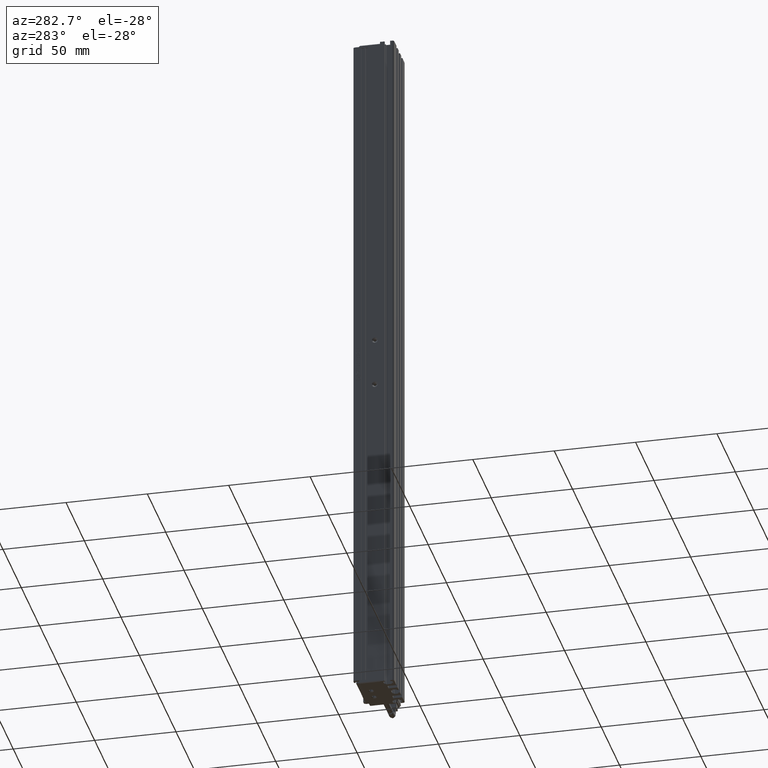
[diagram: clean part render]
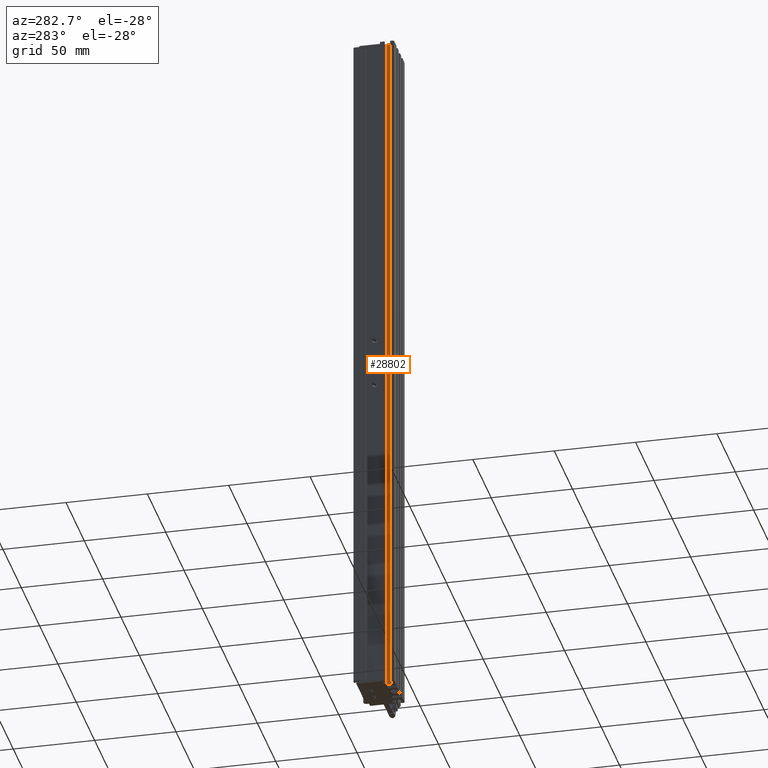
[diagram: same view with one face highlighted and labeled with its STEP entity id]
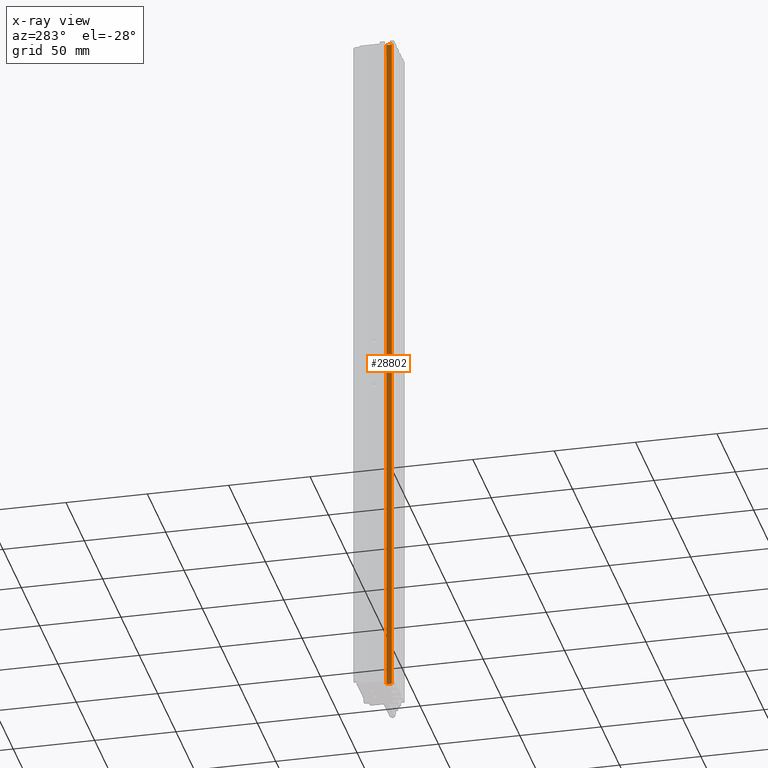
[diagram: x-ray of the same camera — body ghosted, the highlighted face saturated]
A machine part, auxiliary view. The second image highlights one B-rep face of the part: STEP entity #28802.
The next image is the same camera in x-ray: the body ghosted, the highlighted face saturated — about 0% of this face is hidden behind the body in this view.
In plain terms, the highlighted planar face has unit normal (1, 0, -0).
Its self-contained STEP definition (entity closure, byte-faithful):
#1677 = LINE ( 'NONE', #33534, #34597 ) ;
#2852 = EDGE_CURVE ( 'NONE', #55078, #64692, #1677, .T. ) ;
#6443 = FACE_OUTER_BOUND ( 'NONE', #72473, .T. ) ;
#7421 = DIRECTION ( 'NONE',  ( -0.0000000000000000000, -1.000000000000000000, 0.0000000000000000000 ) ) ;
#12691 = CARTESIAN_POINT ( 'NONE',  ( 30.72537974683543300, 12.99594479660387100, 102.0000000000000000 ) ) ;
#13891 = ORIENTED_EDGE ( 'NONE', *, *, #59784, .F. ) ;
#15445 = DIRECTION ( 'NONE',  ( -0.0000000000000000000, 0.0000000000000000000, -1.000000000000000000 ) ) ;
#16809 = LINE ( 'NONE', #48327, #63811 ) ;
#20302 = ORIENTED_EDGE ( 'NONE', *, *, #60264, .T. ) ;
#21232 = VECTOR ( 'NONE', #7421, 1000.000000000000000 ) ;
#25585 = DIRECTION ( 'NONE',  ( 1.000000000000000000, 0.0000000000000000000, -0.0000000000000000000 ) ) ;
#26155 = VERTEX_POINT ( 'NONE', #55039 ) ;
#28179 = ORIENTED_EDGE ( 'NONE', *, *, #46414, .F. ) ;
#28802 = ADVANCED_FACE ( 'NONE', ( #6443 ), #74004, .F. ) ;
#29261 = VERTEX_POINT ( 'NONE', #54367 ) ;
#33534 = CARTESIAN_POINT ( 'NONE',  ( 30.72537974683543300, 12.99594479660387100, 102.0000000000000000 ) ) ;
#33991 = VECTOR ( 'NONE', #34418, 1000.000000000000000 ) ;
#34418 = DIRECTION ( 'NONE',  ( -0.0000000000000000000, -1.000000000000000000, 0.0000000000000000000 ) ) ;
#34597 = VECTOR ( 'NONE', #15445, 1000.000000000000000 ) ;
#37602 = LINE ( 'NONE', #50413, #21232 ) ;
#46414 = EDGE_CURVE ( 'NONE', #29261, #55078, #37602, .T. ) ;
#47112 = ORIENTED_EDGE ( 'NONE', *, *, #2852, .F. ) ;
#48327 = CARTESIAN_POINT ( 'NONE',  ( 30.72537974683543300, 16.49594479660387200, 102.0000000000000000 ) ) ;
#50222 = LINE ( 'NONE', #60333, #33991 ) ;
#50413 = CARTESIAN_POINT ( 'NONE',  ( 30.72537974683543300, 7.083797468354437600, 102.0000000000000000 ) ) ;
#54367 = CARTESIAN_POINT ( 'NONE',  ( 30.72537974683543300, 16.49594479660387200, 102.0000000000000000 ) ) ;
#54471 = DIRECTION ( 'NONE',  ( 0.0000000000000000000, -0.0000000000000000000, 1.000000000000000000 ) ) ;
#55039 = CARTESIAN_POINT ( 'NONE',  ( 30.72537974683543300, 16.49594479660387200, -332.0000000000000000 ) ) ;
#55078 = VERTEX_POINT ( 'NONE', #12691 ) ;
#59784 = EDGE_CURVE ( 'NONE', #26155, #29261, #16809, .T. ) ;
#60264 = EDGE_CURVE ( 'NONE', #26155, #64692, #50222, .T. ) ;
#60333 = CARTESIAN_POINT ( 'NONE',  ( 30.72537974683543300, 7.083797468354437600, -332.0000000000000000 ) ) ;
#62218 = CARTESIAN_POINT ( 'NONE',  ( 30.72537974683543300, 7.083797468354437600, 102.0000000000000000 ) ) ;
#63811 = VECTOR ( 'NONE', #54471, 1000.000000000000000 ) ;
#64692 = VERTEX_POINT ( 'NONE', #70921 ) ;
#68393 = DIRECTION ( 'NONE',  ( -0.0000000000000000000, 0.0000000000000000000, -1.000000000000000000 ) ) ;
#70921 = CARTESIAN_POINT ( 'NONE',  ( 30.72537974683543300, 12.99594479660387100, -332.0000000000000000 ) ) ;
#71211 = AXIS2_PLACEMENT_3D ( 'NONE', #62218, #25585, #68393 ) ;
#72473 = EDGE_LOOP ( 'NONE', ( #47112, #28179, #13891, #20302 ) ) ;
#74004 = PLANE ( 'NONE',  #71211 ) ;